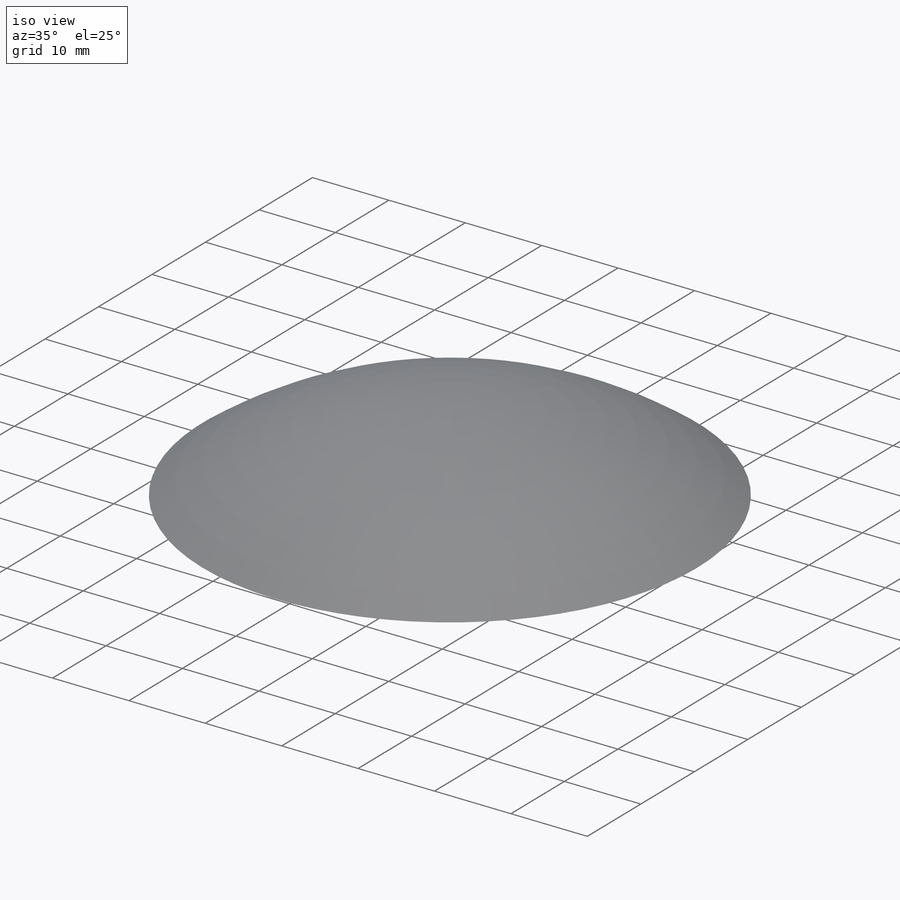
[diagram: iso view]
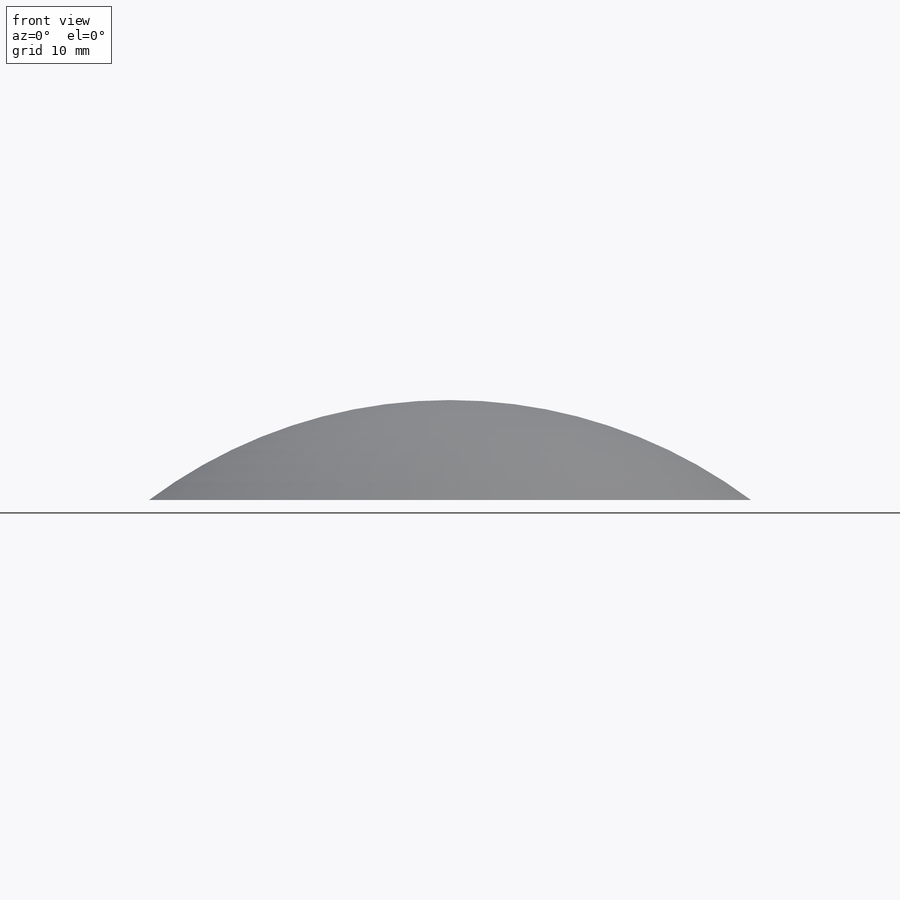
[diagram: front view]
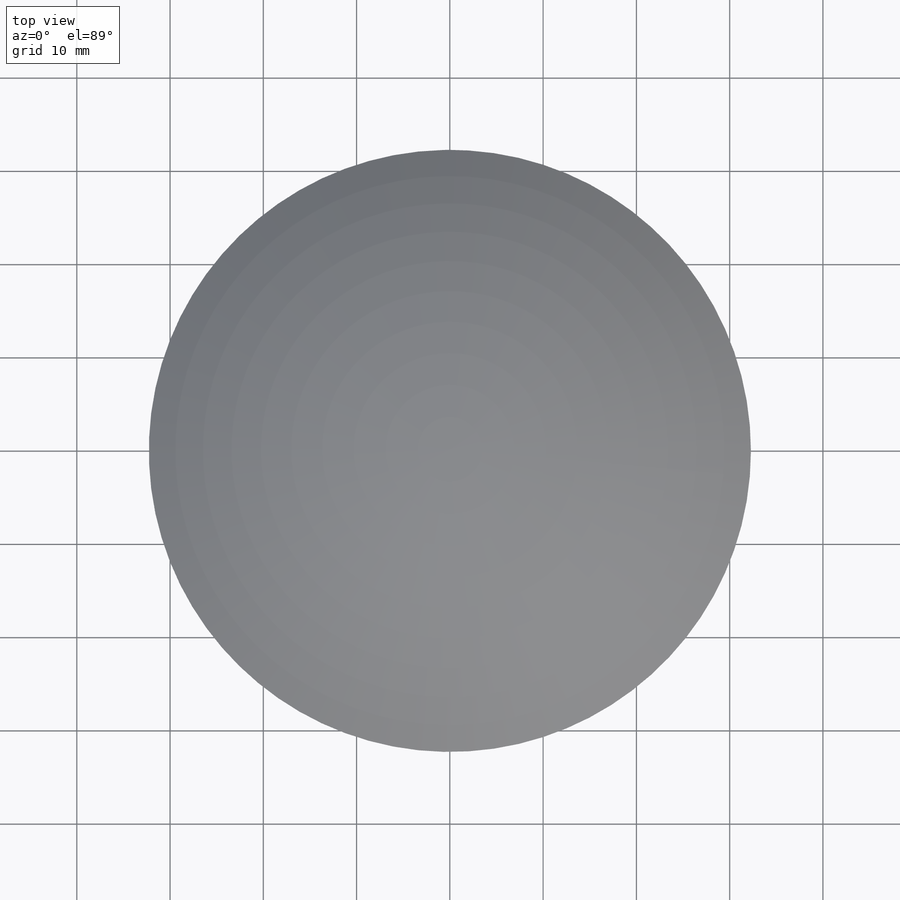
[diagram: top view]
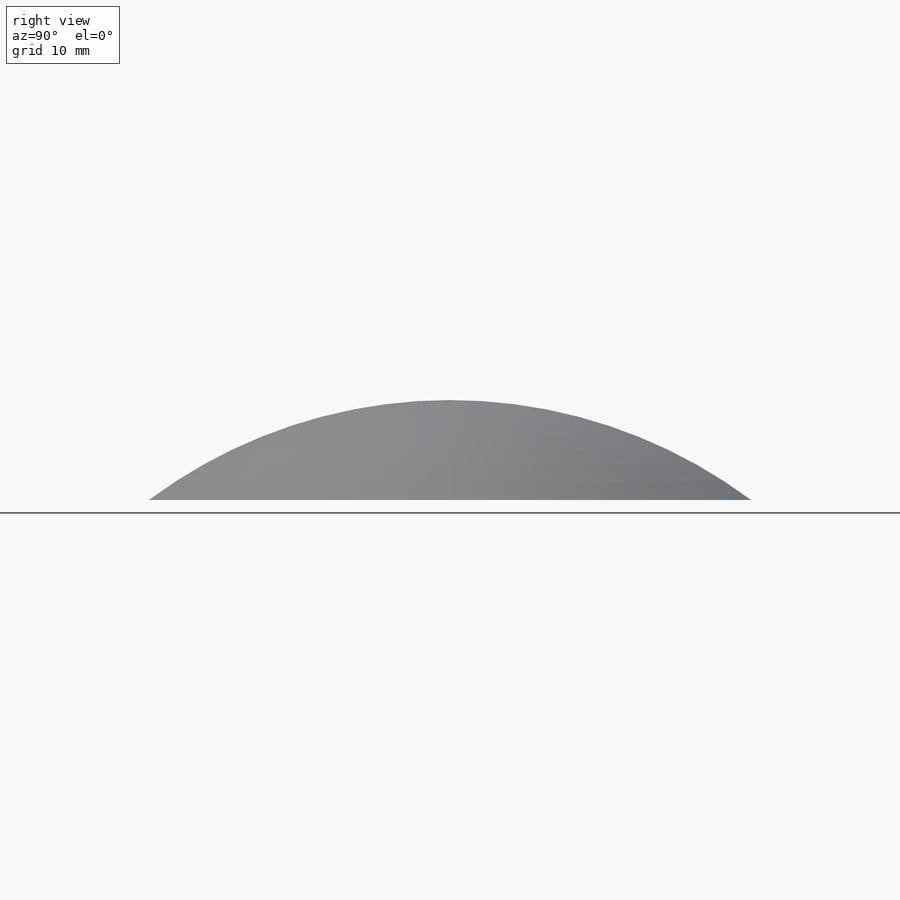
[diagram: right view]
SOLIDWORKS PART (.sldprt)
format: sldprt  version: not decoded by parser v0  size: 708,608 bytes
history: native  units: mm
features: sketch x15, cut_extrude x8, revolve x3, cut_revolve x2, material x1, pattern_circular x1, helix x1, fillet x1, dome x1, plane x1 (+12 scaffold rows collapsed)
feature tree (46):
  scaffold x12  (default folders/planes/origin — collapsed)
  material  "Material <not specified>"
  sketch  "Sketch1"  dims[D1=60.0mm D2=120.0mm]
  revolve  "Revolve1"  Angle=360deg
  sketch  "Sketch2"  dims[c1.D1=6.0mm c1.D3=6.0mm c1.D5=5.0mm c1.D2=12.0mm c2.D3=0.5mm c2.D4=0.5mm c2.D6=3.0mm]
  cut_extrude  "Cut-Extrude1"  Depth=20mm
  pattern_circular  "CirPattern1"  Count=5 Angle=360deg
  sketch  "Sketch3"
  helix  "Helix/Spiral1"  Pitch=250mm
  sketch  "Sketch4"  dims[D1=54.0mm D2=5.0mm]
  cut_revolve  "Cut-Revolve3"  Angle=360deg
  sketch  "Sketch9"  dims[c1.D1=65.0mm c1.D3=7.0mm c2.D1=40.0mm c2.D2=50.0mm]
  cut_revolve  "Cut-Revolve4"  Angle=360deg
  sketch  "Sketch5"  dims[D2=1.5mm D3=2.5mm D1=15.0mm]
  revolve  "Revolve2"  Angle=360deg
  sketch  "Sketch6"  dims[c1.D1=4.0mm c1.D2=17.0mm c1.D3=27.0mm c1.D4=5.0mm c2.D2=2.0mm c2.D5=30.0mm]
  revolve  "Revolve3"  Angle=360deg
  fillet  "Fillet1"  Radius=1mm
  sketch  "Sketch8"
  sketch  "Sketch7"  dims[D1=49.0mm]
  cut_extrude  "Cut-Extrude2"  Depth=2.5mm
  dome  "Dome1"
  sketch  "Sketch11"  dims[c1.D2=7.0mm c1.D1=~10.512141mm c2.D1=45.0deg c2.D3=10.0mm]
  sketch  "Sketch13"
  cut_extrude  "Cut-Extrude5"  Depth=45mm
  cut_extrude  "Cut-Extrude6"  Depth=5mm
  sketch  "Sketch14"
  cut_extrude  "Cut-Extrude7"  [1 undecoded]
  sketch  "Sketch15"  dims[c1.D1=~9.635761mm c1.D2=35.0mm c2.D1=3.0mm]
  cut_extrude  "Cut-Extrude8"  Depth=4mm
  plane  "Plane1"  Offset=58.35mm
  sketch  "Sketch16"
  cut_extrude  "Cut-Extrude9"  [1 undecoded]
  sketch  "Sketch17"
  cut_extrude  "Cut-Extrude10"  [1 undecoded]
decode coverage: 22 of 32 modeling features carry decoded parameters
note: ~ marks probable driven/reference dimensions
note: 3 parameter values undecoded
summary: no parameter record found for 3 features
note: suppression state not decoded; provenance and decode notes live in map.json
